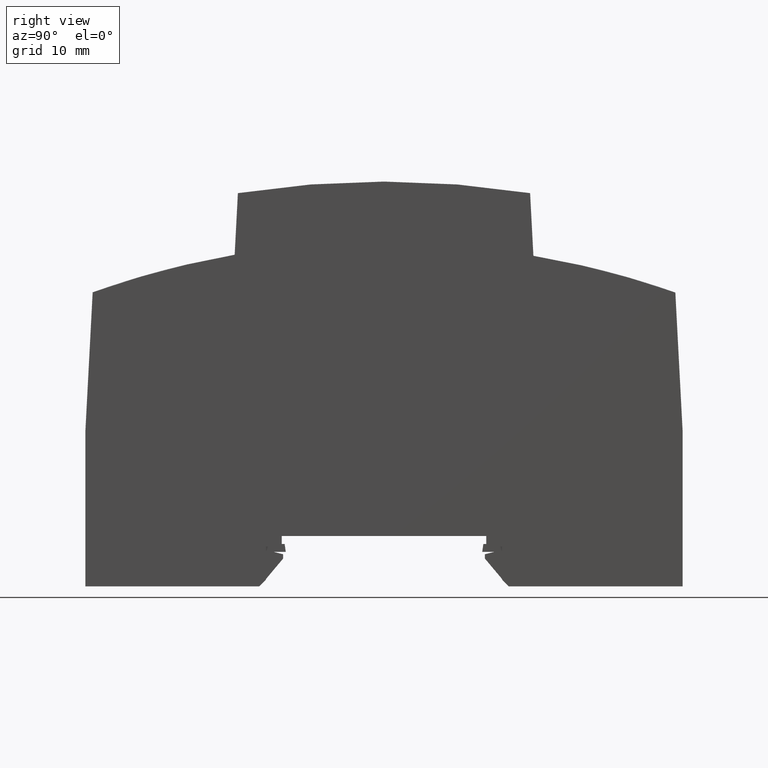
[diagram: clean part render]
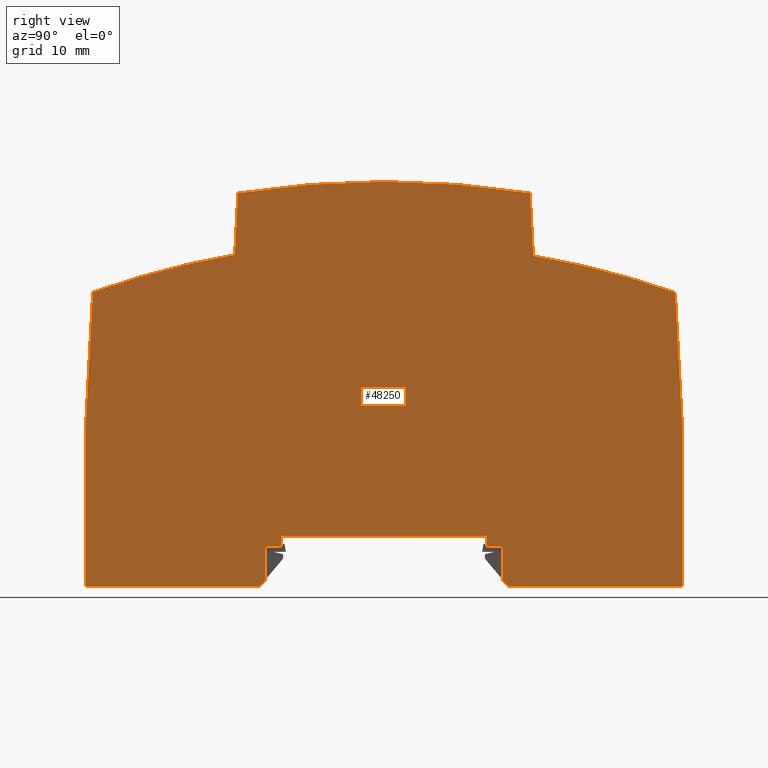
[diagram: same view with one face highlighted and labeled with its STEP entity id]
A machine part, right view. The second image highlights one B-rep face of the part: STEP entity #48250.
In plain terms, the highlighted planar face has unit normal (-1, 0, 0).
Its self-contained STEP definition (entity closure, byte-faithful):
#100=CARTESIAN_POINT('',(-22.0147949371869,59.2582684828237,-9.));
#110=VERTEX_POINT('',#100);
#280=CARTESIAN_POINT('',(-22.5095350886369,49.8180300260019,-9.));
#290=VERTEX_POINT('',#280);
#320=CARTESIAN_POINT('',(-22.9619715592082,41.1849967938318,-9.));
#330=DIRECTION('',(-0.0523357682542517,-0.998629544606626,0.));
#340=VECTOR('',#330,1.);
#350=LINE('',#320,#340);
#360=EDGE_CURVE('',#110,#290,#350,.T.);
#1630=CARTESIAN_POINT('',(22.3788919526176,50.0000534366263,-9.));
#1640=VERTEX_POINT('',#1630);
#1790=CARTESIAN_POINT('',(22.4999786982781,50.0000534613232,-9.));
#1800=VERTEX_POINT('',#1790);
#1830=CARTESIAN_POINT('',(-22.4999929643622,50.0000442830873,-9.));
#1840=DIRECTION('',(0.999999999999979,2.0396092635238E-7,0.));
#1850=VECTOR('',#1840,1.);
#1860=LINE('',#1830,#1850);
#1870=EDGE_CURVE('',#1640,#1800,#1860,.T.);
#2640=CARTESIAN_POINT('',(22.0147975321507,59.2582680697594,-9.));
#2650=VERTEX_POINT('',#2640);
#2680=CARTESIAN_POINT('',(22.44232606873,51.100179464477,-9.));
#2690=DIRECTION('',(-0.052333664853967,0.998629654838546,0.));
#2700=VECTOR('',#2690,1.);
#2710=LINE('',#2680,#2700);
#2720=EDGE_CURVE('',#1800,#2650,#2710,.T.);
#2980=CARTESIAN_POINT('',(4.10004474815651E-10,-78.999999999953,-9.));
#2990=DIRECTION('',(0.,0.,1.));
#3000=DIRECTION('',(0.148596766235499,0.988897871908092,0.));
#3010=AXIS2_PLACEMENT_3D('',#2980,#2990,#3000);
#3020=CIRCLE('',#3010,140.);
#3030=EDGE_CURVE('',#2650,#110,#3020,.T.);
#8760=CARTESIAN_POINT('',(0.0678739772899988,-78.049936182583,-9.));
#8770=DIRECTION('',(0.,0.,-1.));
#8780=DIRECTION('',(-0.173645167147608,0.984808283843246,0.));
#8790=AXIS2_PLACEMENT_3D('',#8760,#8770,#8780);
#8800=CIRCLE('',#8790,129.9791574237);
#8810=CARTESIAN_POINT('',(43.8952236161742,44.3173175587917,-9.));
#8820=VERTEX_POINT('',#8810);
#8830=EDGE_CURVE('',#1640,#8820,#8800,.T.);
#26220=CARTESIAN_POINT('',(-45.,0.,-9.));
#26230=VERTEX_POINT('',#26220);
#26260=CARTESIAN_POINT('',(-45.,0.,-9.));
#26270=DIRECTION('',(0.,1.,0.));
#26280=VECTOR('',#26270,1.);
#26290=LINE('',#26260,#26280);
#26300=CARTESIAN_POINT('',(-45.,23.2499999807991,-9.));
#26310=VERTEX_POINT('',#26300);
#26320=EDGE_CURVE('',#26230,#26310,#26290,.T.);
#26690=CARTESIAN_POINT('',(-17.8000000000015,1.,-9.));
#26700=VERTEX_POINT('',#26690);
#26730=CARTESIAN_POINT('',(22.3849967938304,41.1849967938318,-9.));
#26740=DIRECTION('',(0.707106781186548,0.707106781186548,0.));
#26750=VECTOR('',#26740,1.);
#26760=LINE('',#26730,#26750);
#26770=CARTESIAN_POINT('',(-18.8000000000015,0.,-9.));
#26780=VERTEX_POINT('',#26770);
#26790=EDGE_CURVE('',#26780,#26700,#26760,.T.);
#28200=CARTESIAN_POINT('',(-5.18127762916265E-11,0.,-9.));
#28210=DIRECTION('',(-1.,0.,0.));
#28220=VECTOR('',#28210,1.);
#28230=LINE('',#28200,#28220);
#28240=EDGE_CURVE('',#26780,#26230,#28230,.T.);
#39460=CARTESIAN_POINT('',(-43.89688827352,44.2855737004905,-9.));
#39470=VERTEX_POINT('',#39460);
#39500=CARTESIAN_POINT('',(-0.769551790282564,-78.3301439397721,-9.));
#39510=DIRECTION('',(0.,0.,1.));
#39520=DIRECTION('',(0.180676145810859,0.983542642865541,0.));
#39530=AXIS2_PLACEMENT_3D('',#39500,#39510,#39520);
#39540=CIRCLE('',#39530,129.9791574237);
#39550=EDGE_CURVE('',#290,#39470,#39540,.T.);
#43500=CARTESIAN_POINT('',(45.,23.2499999806805,-9.));
#43510=VERTEX_POINT('',#43500);
#43540=CARTESIAN_POINT('',(45.,0.,-9.));
#43550=DIRECTION('',(0.,-1.,0.));
#43560=VECTOR('',#43550,1.);
#43570=LINE('',#43540,#43560);
#43580=CARTESIAN_POINT('',(45.,0.,-9.));
#43590=VERTEX_POINT('',#43580);
#43600=EDGE_CURVE('',#43510,#43590,#43570,.T.);
#46630=CARTESIAN_POINT('',(-5.18127762916265E-11,0.,-9.));
#46640=DIRECTION('',(-1.,0.,0.));
#46650=VECTOR('',#46640,1.);
#46660=LINE('',#46630,#46650);
#46670=CARTESIAN_POINT('',(18.7999999999985,-7.105427357601E-15,-9.));
#46680=VERTEX_POINT('',#46670);
#46690=EDGE_CURVE('',#43590,#46680,#46660,.T.);
#47330=CARTESIAN_POINT('',(0.150127479717771,40.9012614818167,-9.));
#47340=DIRECTION('',(0.,-0.,1.));
#47350=DIRECTION('',(0.999974481745976,-0.00714393847021669,-0.));
#47360=AXIS2_PLACEMENT_3D('',#47330,#47340,#47350);
#47370=PLANE('',#47360);
#47380=CARTESIAN_POINT('',(44.0594834463526,41.1849967938318,-9.));
#47390=DIRECTION('',(0.0523683400380783,-0.998627837065268,-0.));
#47400=VECTOR('',#47390,1.);
#47410=LINE('',#47380,#47400);
#47420=EDGE_CURVE('',#8820,#43510,#47410,.T.);
#47430=ORIENTED_EDGE('',*,*,#47420,.T.);
#47440=ORIENTED_EDGE('',*,*,#8830,.T.);
#47450=ORIENTED_EDGE('',*,*,#1870,.F.);
#47460=ORIENTED_EDGE('',*,*,#2720,.F.);
#47470=ORIENTED_EDGE('',*,*,#3030,.F.);
#47480=ORIENTED_EDGE('',*,*,#360,.F.);
#47490=ORIENTED_EDGE('',*,*,#39550,.F.);
#47500=CARTESIAN_POINT('',(-44.0594834463527,41.1849967938318,-9.));
#47510=DIRECTION('',(0.0523683400384174,0.998627837065251,0.));
#47520=VECTOR('',#47510,1.);
#47530=LINE('',#47500,#47520);
#47540=EDGE_CURVE('',#26310,#39470,#47530,.T.);
#47550=ORIENTED_EDGE('',*,*,#47540,.T.);
#47560=ORIENTED_EDGE('',*,*,#26320,.T.);
#47570=ORIENTED_EDGE('',*,*,#28240,.T.);
#47580=ORIENTED_EDGE('',*,*,#26790,.F.);
#47590=CARTESIAN_POINT('',(-17.8000000000015,41.1849967938318,-9.));
#47600=DIRECTION('',(0.,1.,0.));
#47610=VECTOR('',#47600,1.);
#47620=LINE('',#47590,#47610);
#47630=CARTESIAN_POINT('',(-17.8000000000015,6.,-9.));
#47640=VERTEX_POINT('',#47630);
#47650=EDGE_CURVE('',#26700,#47640,#47620,.T.);
#47660=ORIENTED_EDGE('',*,*,#47650,.F.);
#47670=CARTESIAN_POINT('',(-5.18127762916265E-11,6.,-9.));
#47680=DIRECTION('',(1.,0.,0.));
#47690=VECTOR('',#47680,1.);
#47700=LINE('',#47670,#47690);
#47710=CARTESIAN_POINT('',(-15.4000000000015,6.,-9.));
#47720=VERTEX_POINT('',#47710);
#47730=EDGE_CURVE('',#47640,#47720,#47700,.T.);
#47740=ORIENTED_EDGE('',*,*,#47730,.F.);
#47750=CARTESIAN_POINT('',(-15.4000000000015,41.1849967938318,-9.));
#47760=DIRECTION('',(0.,1.,0.));
#47770=VECTOR('',#47760,1.);
#47780=LINE('',#47750,#47770);
#47790=CARTESIAN_POINT('',(-15.4000000000015,7.59999999999999,-9.));
#47800=VERTEX_POINT('',#47790);
#47810=EDGE_CURVE('',#47720,#47800,#47780,.T.);
#47820=ORIENTED_EDGE('',*,*,#47810,.F.);
#47830=CARTESIAN_POINT('',(-5.18127762916265E-11,7.59999999999999,-9.));
#47840=DIRECTION('',(1.,0.,0.));
#47850=VECTOR('',#47840,1.);
#47860=LINE('',#47830,#47850);
#47870=CARTESIAN_POINT('',(15.3999999999985,7.59999999999999,-9.));
#47880=VERTEX_POINT('',#47870);
#47890=EDGE_CURVE('',#47800,#47880,#47860,.T.);
#47900=ORIENTED_EDGE('',*,*,#47890,.F.);
#47910=CARTESIAN_POINT('',(15.3999999999985,41.1849967938318,-9.));
#47920=DIRECTION('',(0.,-1.,0.));
#47930=VECTOR('',#47920,1.);
#47940=LINE('',#47910,#47930);
#47950=CARTESIAN_POINT('',(15.3999999999985,6.,-9.));
#47960=VERTEX_POINT('',#47950);
#47970=EDGE_CURVE('',#47880,#47960,#47940,.T.);
#47980=ORIENTED_EDGE('',*,*,#47970,.F.);
#47990=CARTESIAN_POINT('',(-5.18127762916265E-11,6.,-9.));
#48000=DIRECTION('',(1.,0.,0.));
#48010=VECTOR('',#48000,1.);
#48020=LINE('',#47990,#48010);
#48030=CARTESIAN_POINT('',(17.7999999999985,6.,-9.));
#48040=VERTEX_POINT('',#48030);
#48050=EDGE_CURVE('',#47960,#48040,#48020,.T.);
#48060=ORIENTED_EDGE('',*,*,#48050,.F.);
#48070=CARTESIAN_POINT('',(17.7999999999985,41.1849967938318,-9.));
#48080=DIRECTION('',(0.,-1.,0.));
#48090=VECTOR('',#48080,1.);
#48100=LINE('',#48070,#48090);
#48110=CARTESIAN_POINT('',(17.7999999999985,0.999999999999993,-9.));
#48120=VERTEX_POINT('',#48110);
#48130=EDGE_CURVE('',#48040,#48120,#48100,.T.);
#48140=ORIENTED_EDGE('',*,*,#48130,.F.);
#48150=CARTESIAN_POINT('',(-22.3849967938333,41.1849967938318,-9.));
#48160=DIRECTION('',(0.707106781186548,-0.707106781186548,-0.));
#48170=VECTOR('',#48160,1.);
#48180=LINE('',#48150,#48170);
#48190=EDGE_CURVE('',#48120,#46680,#48180,.T.);
#48200=ORIENTED_EDGE('',*,*,#48190,.F.);
#48210=ORIENTED_EDGE('',*,*,#46690,.T.);
#48220=ORIENTED_EDGE('',*,*,#43600,.T.);
#48230=EDGE_LOOP('',(#48220,#48210,#48200,#48140,#48060,#47980,#47900,
#47820,#47740,#47660,#47580,#47570,#47560,#47550,#47490,#47480,#47470,
#47460,#47450,#47440,#47430));
#48240=FACE_OUTER_BOUND('',#48230,.T.);
#48250=ADVANCED_FACE('',(#48240),#47370,.F.);